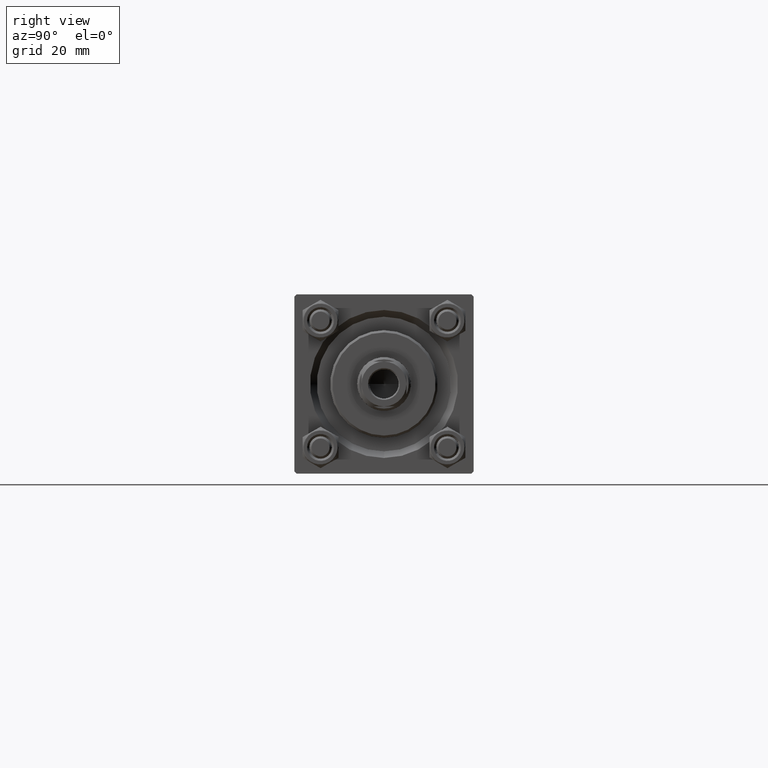
[diagram: clean part render]
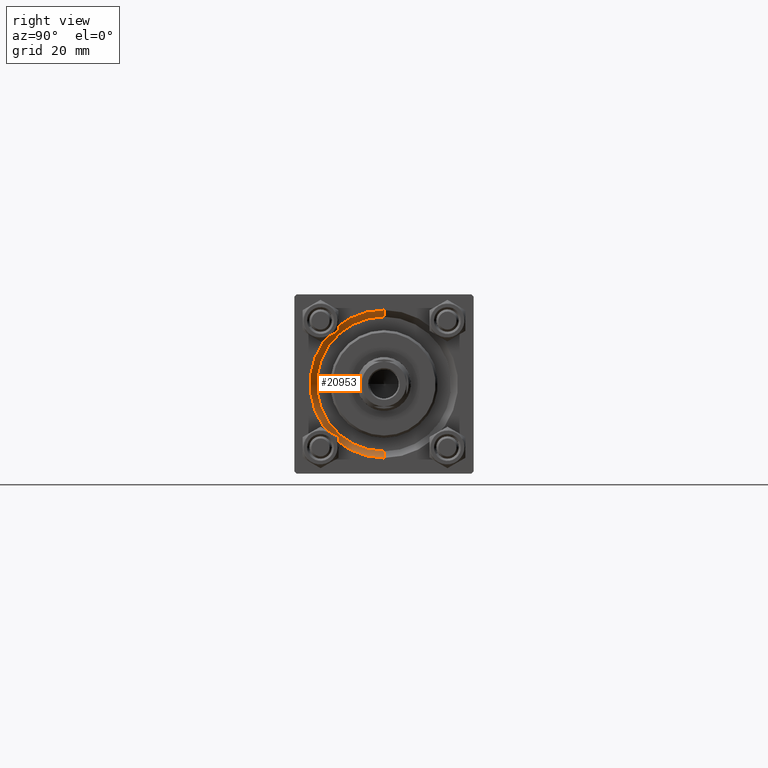
[diagram: same view with one face highlighted and labeled with its STEP entity id]
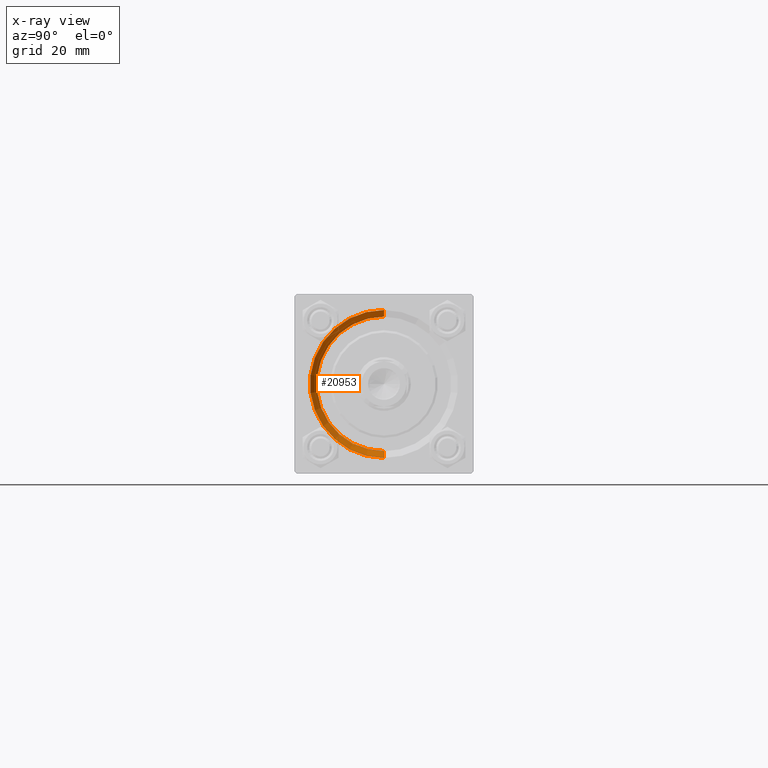
[diagram: x-ray of the same camera — body ghosted, the highlighted face saturated]
A machine part, right view. The second image highlights one B-rep face of the part: STEP entity #20953.
The next image is the same camera in x-ray: the body ghosted, the highlighted face saturated — about 0% of this face is hidden behind the body in this view.
In plain terms, the highlighted conical surface has half-angle 45 deg.
Its self-contained STEP definition (entity closure, byte-faithful):
#1538 = ORIENTED_EDGE ( 'NONE', *, *, #48851, .F. ) ;
#2747 = CARTESIAN_POINT ( 'NONE',  ( 119.0000000000000142, 0.000000000000000000, -16.50000000000001421 ) ) ;
#5880 = CARTESIAN_POINT ( 'NONE',  ( 117.5000000000000000, 0.000000000000000000, 0.000000000000000000 ) ) ;
#6045 = VECTOR ( 'NONE', #39321, 1000.000000000000114 ) ;
#6325 = AXIS2_PLACEMENT_3D ( 'NONE', #16249, #30869, #38670 ) ;
#6369 = DIRECTION ( 'NONE',  ( 1.000000000000000000, 0.000000000000000000, 0.000000000000000000 ) ) ;
#11331 = AXIS2_PLACEMENT_3D ( 'NONE', #5880, #6369, #13194 ) ;
#12271 = VERTEX_POINT ( 'NONE', #13422 ) ;
#12279 = DIRECTION ( 'NONE',  ( 0.7071067811865474617, 8.659560562354932858E-17, 0.7071067811865474617 ) ) ;
#12767 = LINE ( 'NONE', #46775, #21148 ) ;
#13194 = DIRECTION ( 'NONE',  ( 0.000000000000000000, 0.000000000000000000, 1.000000000000000000 ) ) ;
#13422 = CARTESIAN_POINT ( 'NONE',  ( 119.0000000000000142, 2.020667218593134678E-15, 16.50000000000001421 ) ) ;
#15463 = DIRECTION ( 'NONE',  ( 1.000000000000000000, 0.000000000000000000, 0.000000000000000000 ) ) ;
#16249 = CARTESIAN_POINT ( 'NONE',  ( 119.0000000000000142, 0.000000000000000000, 0.000000000000000000 ) ) ;
#16409 = LINE ( 'NONE', #35783, #6045 ) ;
#17146 = VERTEX_POINT ( 'NONE', #36609 ) ;
#19640 = VERTEX_POINT ( 'NONE', #31490 ) ;
#20953 = ADVANCED_FACE ( 'NONE', ( #38625 ), #24377, .F. ) ;
#21148 = VECTOR ( 'NONE', #12279, 1000.000000000000114 ) ;
#23168 = EDGE_CURVE ( 'NONE', #19640, #12271, #12767, .T. ) ;
#23589 = ORIENTED_EDGE ( 'NONE', *, *, #28786, .F. ) ;
#24377 = CONICAL_SURFACE ( 'NONE', #29912, 15.00000000000000000, 0.7853981633974482790 ) ;
#28786 = EDGE_CURVE ( 'NONE', #17146, #35440, #16409, .T. ) ;
#29079 = ORIENTED_EDGE ( 'NONE', *, *, #42415, .F. ) ;
#29086 = ORIENTED_EDGE ( 'NONE', *, *, #23168, .T. ) ;
#29912 = AXIS2_PLACEMENT_3D ( 'NONE', #34333, #15463, #38365 ) ;
#30869 = DIRECTION ( 'NONE',  ( -1.000000000000000000, -0.000000000000000000, -0.000000000000000000 ) ) ;
#31490 = CARTESIAN_POINT ( 'NONE',  ( 117.5000000000000000, 1.836970198721029589E-15, 15.00000000000000000 ) ) ;
#33043 = CIRCLE ( 'NONE', #11331, 15.00000000000000000 ) ;
#34333 = CARTESIAN_POINT ( 'NONE',  ( 117.5000000000000000, 0.000000000000000000, 0.000000000000000000 ) ) ;
#35440 = VERTEX_POINT ( 'NONE', #2747 ) ;
#35783 = CARTESIAN_POINT ( 'NONE',  ( 117.5000000000000000, 0.000000000000000000, -15.00000000000000000 ) ) ;
#36609 = CARTESIAN_POINT ( 'NONE',  ( 117.5000000000000000, 0.000000000000000000, -15.00000000000000000 ) ) ;
#36705 = EDGE_LOOP ( 'NONE', ( #1538, #29086, #29079, #23589 ) ) ;
#38365 = DIRECTION ( 'NONE',  ( 0.000000000000000000, 0.000000000000000000, -1.000000000000000000 ) ) ;
#38625 = FACE_OUTER_BOUND ( 'NONE', #36705, .T. ) ;
#38670 = DIRECTION ( 'NONE',  ( 0.000000000000000000, 0.000000000000000000, 1.000000000000000000 ) ) ;
#39321 = DIRECTION ( 'NONE',  ( 0.7071067811865474617, 0.000000000000000000, -0.7071067811865474617 ) ) ;
#42415 = EDGE_CURVE ( 'NONE', #35440, #12271, #49765, .T. ) ;
#46775 = CARTESIAN_POINT ( 'NONE',  ( 117.5000000000000000, 1.836970198721029589E-15, 15.00000000000000000 ) ) ;
#48851 = EDGE_CURVE ( 'NONE', #19640, #17146, #33043, .T. ) ;
#49765 = CIRCLE ( 'NONE', #6325, 16.50000000000001421 ) ;